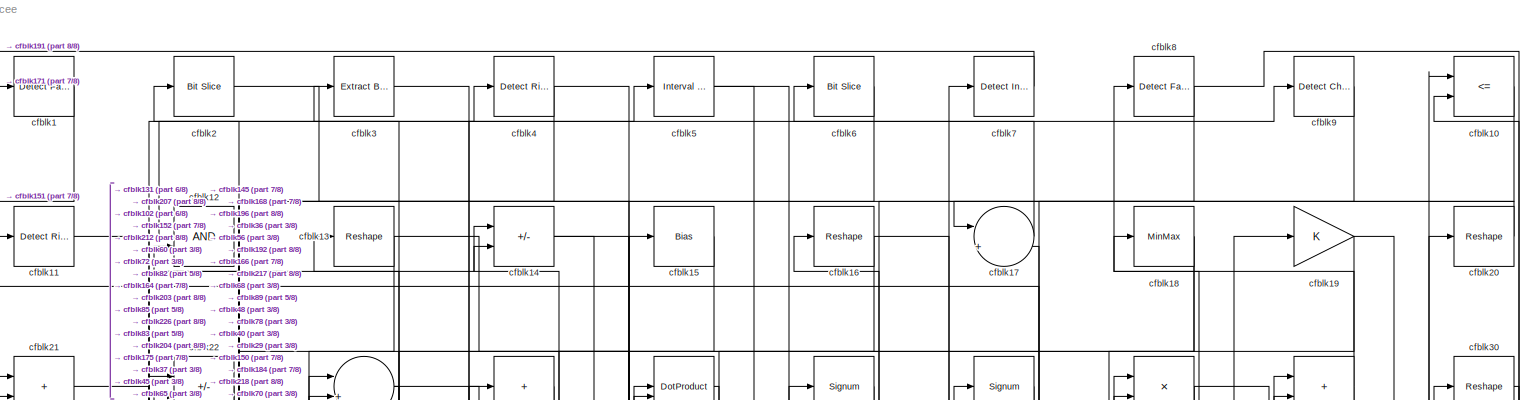
[diagram: root canvas - part 1/8, full width, top band]
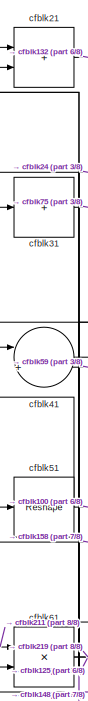
[diagram: root canvas - part 2/8, top left region]
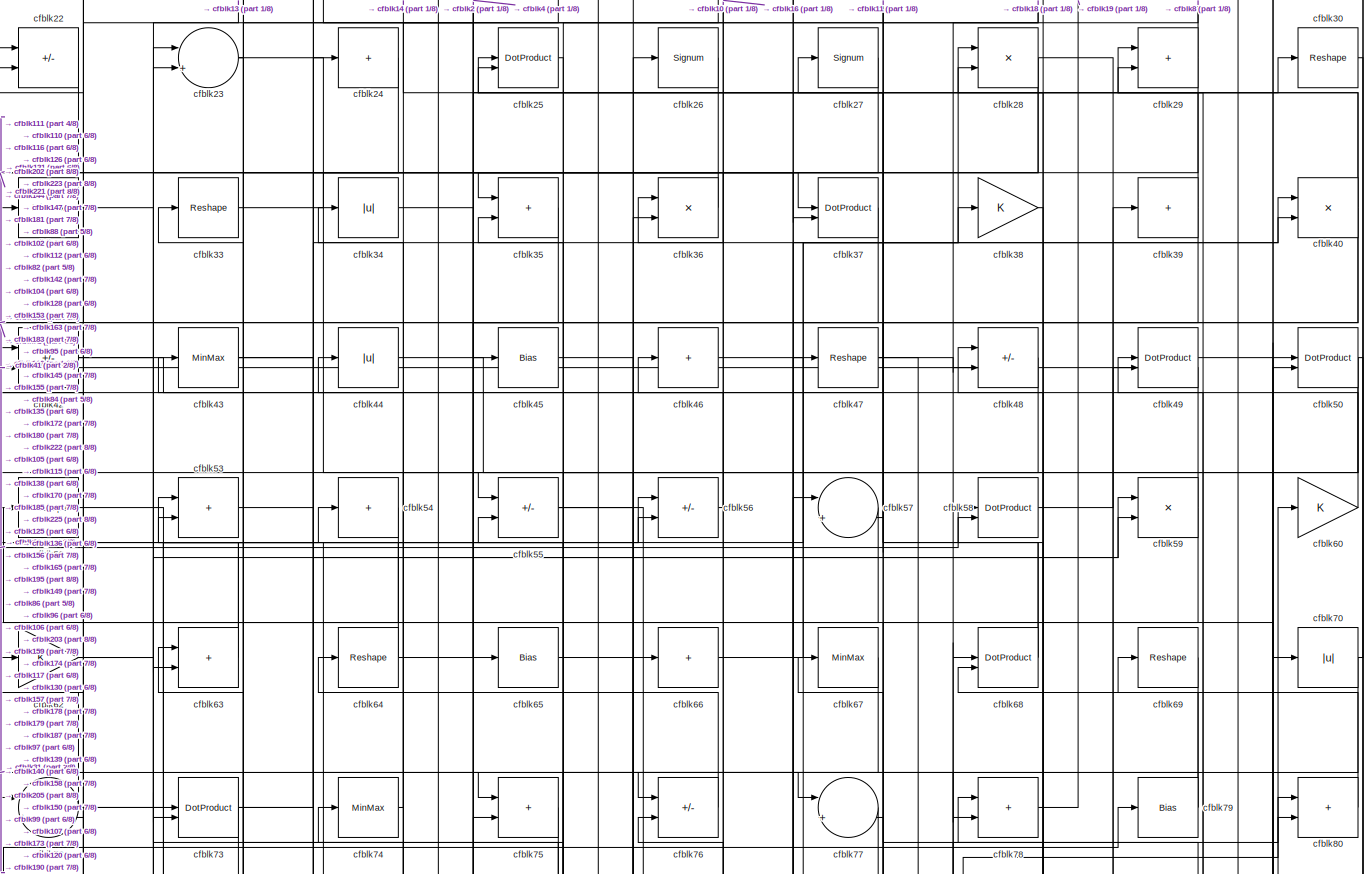
[diagram: root canvas - part 3/8, full width, top band]
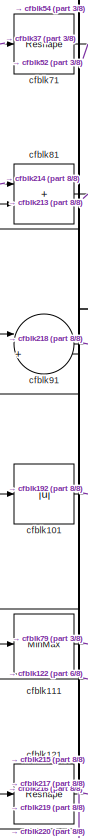
[diagram: root canvas - part 4/8, middle left region]
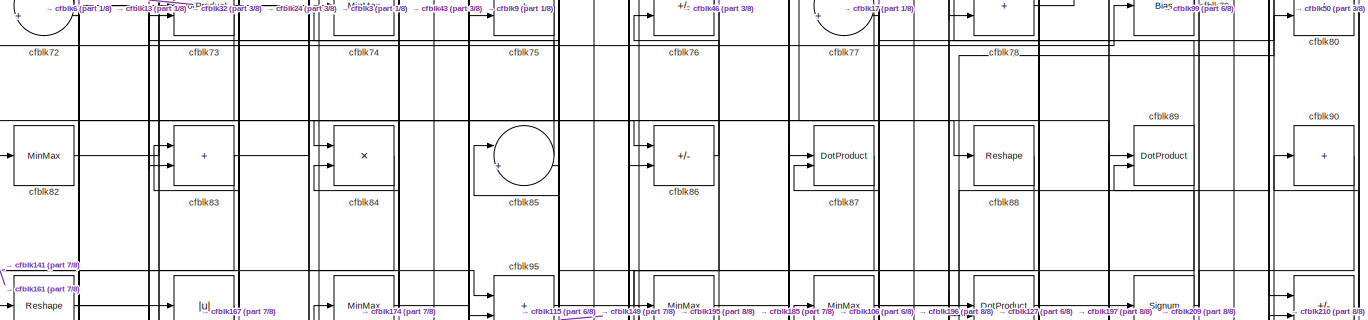
[diagram: root canvas - part 5/8, full width, middle band]
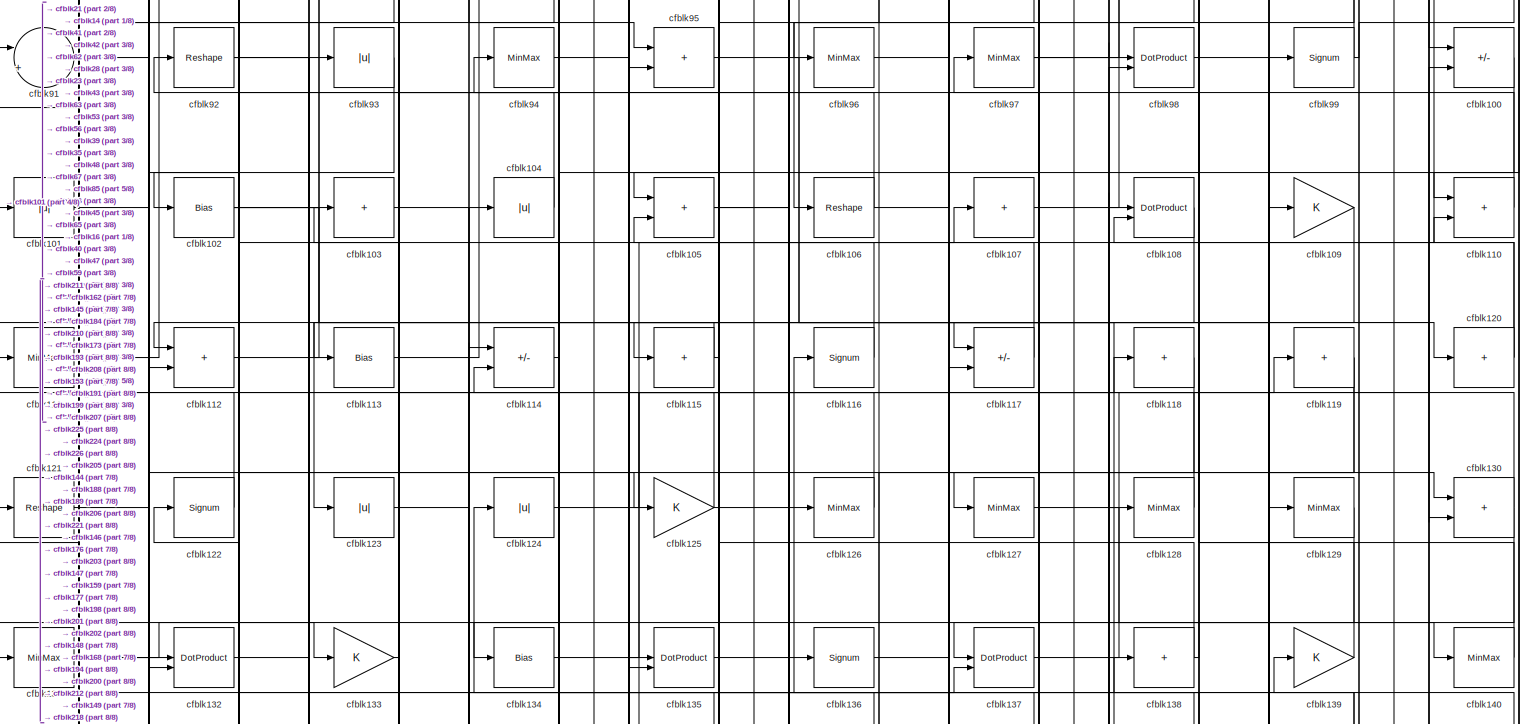
[diagram: root canvas - part 6/8, full width, middle band]
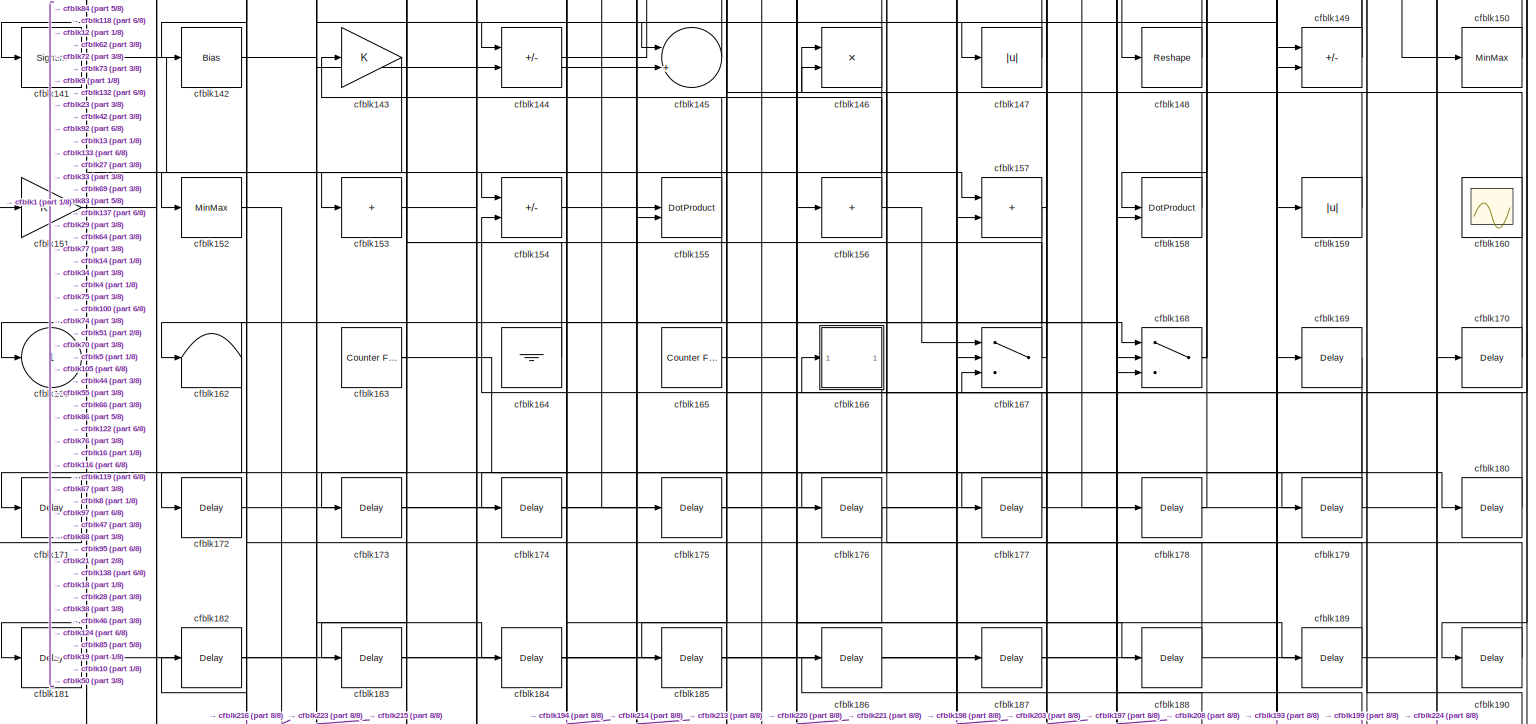
[diagram: root canvas - part 7/8, full width, bottom band]
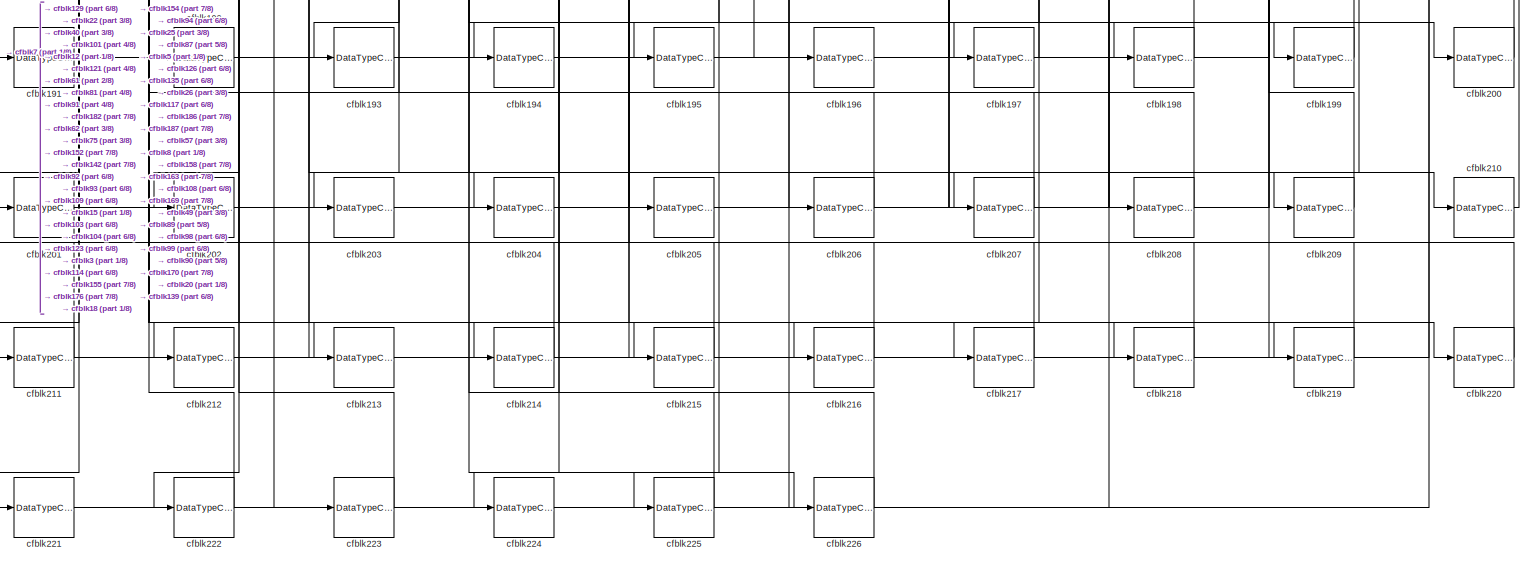
[diagram: root canvas - part 8/8, full width, bottom band]
MODEL slx_c5212704bcee
KIND model
CONFIG AbsTol = auto
CONFIG EnableMultiTasking = off
CONFIG FixedStep = auto
CONFIG MaxStep = auto
CONFIG MinStep = auto
CONFIG RelTol = 1e-3
CONFIG SampleTimeConstraint = Unconstrained
CONFIG SolverName = VariableStepAuto
CONFIG StartTime = 0.0
CONFIG StopTime = 10.0
BLOCK [Reference] cfblk1  REF=hdlsllib/Logic and Bit
Operations/Detect Fall
Negative
  SourceBlock = hdlsllib/Logic and Bit\nOperations/Detect Fall\nNegative
  SourceType = Detect Fall Negative
BLOCK [RelationalOperator] cfblk10
  InputSameDT = off
  Operator = <=
  OutDataTypeStr = boolean
BLOCK [Sum] cfblk100
  IconShape = rectangular
  Inputs = +-
BLOCK [Abs] cfblk101
  SaturateOnIntegerOverflow = off
BLOCK [Bias] cfblk102
  Bias = 0.0
  SaturateOnIntegerOverflow = off
BLOCK [Sum] cfblk103
  IconShape = rectangular
  Inputs = +
BLOCK [Abs] cfblk104
  SaturateOnIntegerOverflow = off
BLOCK [Sum] cfblk105
  IconShape = rectangular
BLOCK [Reshape] cfblk106
BLOCK [Sum] cfblk107
  IconShape = rectangular
  Inputs = +
BLOCK [DotProduct] cfblk108
  OutDataTypeStr = Inherit: Inherit via internal rule
BLOCK [Gain] cfblk109
BLOCK [Reference] cfblk11  REF=hdlsllib/Logic and Bit
Operations/Detect Rise
Nonnegative
  SourceBlock = hdlsllib/Logic and Bit\nOperations/Detect Rise\nNonnegative
  SourceType = Detect Rise Nonnegative
BLOCK [Sum] cfblk110
  IconShape = rectangular
BLOCK [MinMax] cfblk111
BLOCK [Sum] cfblk112
  IconShape = rectangular
BLOCK [Bias] cfblk113
  Bias = 0.0
  SaturateOnIntegerOverflow = off
BLOCK [Sum] cfblk114
  IconShape = rectangular
  Inputs = +-
BLOCK [Sum] cfblk115
  IconShape = rectangular
  Inputs = +
BLOCK [Signum] cfblk116
BLOCK [Sum] cfblk117
  IconShape = rectangular
  Inputs = +-
BLOCK [Sum] cfblk118
  IconShape = rectangular
  Inputs = +
BLOCK [Sum] cfblk119
  IconShape = rectangular
  Inputs = +
BLOCK [Logic] cfblk12
  AllPortsSameDT = off
  OutDataTypeStr = boolean
BLOCK [Sum] cfblk120
  IconShape = rectangular
  Inputs = +
BLOCK [Reshape] cfblk121
BLOCK [Signum] cfblk122
BLOCK [Abs] cfblk123
  SaturateOnIntegerOverflow = off
BLOCK [Abs] cfblk124
  SaturateOnIntegerOverflow = off
BLOCK [Gain] cfblk125
BLOCK [MinMax] cfblk126
BLOCK [MinMax] cfblk127
BLOCK [MinMax] cfblk128
BLOCK [MinMax] cfblk129
BLOCK [Reshape] cfblk13
BLOCK [Sum] cfblk130
  IconShape = rectangular
BLOCK [MinMax] cfblk131
BLOCK [DotProduct] cfblk132
  OutDataTypeStr = Inherit: Inherit via internal rule
BLOCK [Gain] cfblk133
BLOCK [Bias] cfblk134
  Bias = 0.0
  SaturateOnIntegerOverflow = off
BLOCK [DotProduct] cfblk135
  OutDataTypeStr = Inherit: Inherit via internal rule
BLOCK [Signum] cfblk136
BLOCK [DotProduct] cfblk137
  OutDataTypeStr = Inherit: Inherit via internal rule
BLOCK [Sum] cfblk138
  IconShape = rectangular
  Inputs = +
BLOCK [Gain] cfblk139
BLOCK [Sum] cfblk14
  IconShape = rectangular
  Inputs = +-
BLOCK [MinMax] cfblk140
BLOCK [Signum] cfblk141
BLOCK [Bias] cfblk142
  Bias = 0.0
  SaturateOnIntegerOverflow = off
BLOCK [Gain] cfblk143
BLOCK [Sum] cfblk144
  IconShape = rectangular
  Inputs = +-
BLOCK [Sum] cfblk145
  Inputs = |++
BLOCK [Product] cfblk146
  Inputs = */
  RndMeth = Zero
  SaturateOnIntegerOverflow = on
BLOCK [Abs] cfblk147
  SaturateOnIntegerOverflow = off
BLOCK [Reshape] cfblk148
BLOCK [Sum] cfblk149
  IconShape = rectangular
  Inputs = +-
BLOCK [Bias] cfblk15
  Bias = 0.0
  SaturateOnIntegerOverflow = off
BLOCK [MinMax] cfblk150
BLOCK [Gain] cfblk151
BLOCK [MinMax] cfblk152
BLOCK [Sum] cfblk153
  IconShape = rectangular
  Inputs = +
BLOCK [Sum] cfblk154
  IconShape = rectangular
  Inputs = +-
BLOCK [DotProduct] cfblk155
  OutDataTypeStr = Inherit: Inherit via internal rule
BLOCK [Sum] cfblk156
  IconShape = rectangular
  Inputs = +
BLOCK [Sum] cfblk157
  IconShape = rectangular
BLOCK [DotProduct] cfblk158
  OutDataTypeStr = Inherit: Inherit via internal rule
BLOCK [Abs] cfblk159
  SaturateOnIntegerOverflow = off
BLOCK [Reshape] cfblk16
BLOCK [Scope] cfblk160
  Floating = on
  NumInputPorts = 1
  ScopeSpecificationString = Simulink.scopes.TimeScopeBlockCfg('CurrentConfiguration', extmgr.ConfigurationSet(extmgr.Configuration('Core','General UI',true,'FigureColor',[0.156862745098039 0.156862745098039 0.156862745098039]),extmgr.Configuration('Core','Source UI',true),extmgr.Configuration('Sources','WiredSimulink',true,'DataLoggingVariableName','ScopeData1','DataLoggingSaveFormat','StructureWithTime','DataLoggingLimitDat...<+2713ch>
BLOCK [Outport] cfblk161
  VectorParamsAs1DForOutWhenUnconnected = off
BLOCK [Terminator] cfblk162
BLOCK [Reference] cfblk163  REF=hdlsllib/Sources/Counter
Free-Running
  SourceBlock = hdlsllib/Sources/Counter\nFree-Running
  SourceType = Counter Free-Running
BLOCK [Ground] cfblk164
BLOCK [Reference] cfblk165  REF=hdlsllib/Sources/Counter
Free-Running
  SourceBlock = hdlsllib/Sources/Counter\nFree-Running
  SourceType = Counter Free-Running
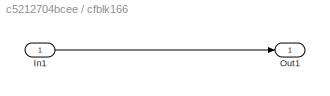
BLOCK [SubSystem] cfblk166
  LibrarySourceBlock = hdlsllib/Ports &\nSubsystems/Subsystem
BLOCK [Inport] cfblk166/In1
BLOCK [Outport] cfblk166/Out1
BLOCK [Switch] cfblk167
  InputSameDT = off
  SaturateOnIntegerOverflow = off
BLOCK [Switch] cfblk168
  InputSameDT = off
  SaturateOnIntegerOverflow = off
BLOCK [Delay] cfblk169
  InputPortMap = u0
  SampleTime = 1
BLOCK [Sum] cfblk17
  Inputs = |++
BLOCK [Delay] cfblk170
  InputPortMap = u0
  SampleTime = 1
BLOCK [Delay] cfblk171
  InputPortMap = u0
  SampleTime = 1
BLOCK [Delay] cfblk172
  InputPortMap = u0
  SampleTime = 1
BLOCK [Delay] cfblk173
  InputPortMap = u0
  SampleTime = 1
BLOCK [Delay] cfblk174
  InputPortMap = u0
  SampleTime = 1
BLOCK [Delay] cfblk175
  InputPortMap = u0
  SampleTime = 1
BLOCK [Delay] cfblk176
  InputPortMap = u0
  SampleTime = 1
BLOCK [Delay] cfblk177
  InputPortMap = u0
  SampleTime = 1
BLOCK [Delay] cfblk178
  InputPortMap = u0
  SampleTime = 1
BLOCK [Delay] cfblk179
  InputPortMap = u0
  SampleTime = 1
BLOCK [MinMax] cfblk18
BLOCK [Delay] cfblk180
  InputPortMap = u0
  SampleTime = 1
BLOCK [Delay] cfblk181
  InputPortMap = u0
  SampleTime = 1
BLOCK [Delay] cfblk182
  InputPortMap = u0
  SampleTime = 1
BLOCK [Delay] cfblk183
  InputPortMap = u0
  SampleTime = 1
BLOCK [Delay] cfblk184
  InputPortMap = u0
  SampleTime = 1
BLOCK [Delay] cfblk185
  InputPortMap = u0
  SampleTime = 1
BLOCK [Delay] cfblk186
  InputPortMap = u0
  SampleTime = 1
BLOCK [Delay] cfblk187
  InputPortMap = u0
  SampleTime = 1
BLOCK [Delay] cfblk188
  InputPortMap = u0
  SampleTime = 1
BLOCK [Delay] cfblk189
  InputPortMap = u0
  SampleTime = 1
BLOCK [Gain] cfblk19
BLOCK [Delay] cfblk190
  InputPortMap = u0
  SampleTime = 1
BLOCK [DataTypeConversion] cfblk191
  OutDataTypeStr = uint8
  RndMeth = Floor
  SaturateOnIntegerOverflow = off
BLOCK [DataTypeConversion] cfblk192
  OutDataTypeStr = uint8
  RndMeth = Floor
  SaturateOnIntegerOverflow = off
BLOCK [DataTypeConversion] cfblk193
  OutDataTypeStr = uint8
  RndMeth = Floor
  SaturateOnIntegerOverflow = off
BLOCK [DataTypeConversion] cfblk194
  OutDataTypeStr = uint8
  RndMeth = Floor
  SaturateOnIntegerOverflow = off
BLOCK [DataTypeConversion] cfblk195
  OutDataTypeStr = uint8
  RndMeth = Floor
  SaturateOnIntegerOverflow = off
BLOCK [DataTypeConversion] cfblk196
  OutDataTypeStr = uint8
  RndMeth = Floor
  SaturateOnIntegerOverflow = off
BLOCK [DataTypeConversion] cfblk197
  OutDataTypeStr = uint8
  RndMeth = Floor
  SaturateOnIntegerOverflow = off
BLOCK [DataTypeConversion] cfblk198
  OutDataTypeStr = uint8
  RndMeth = Floor
  SaturateOnIntegerOverflow = off
BLOCK [DataTypeConversion] cfblk199
  OutDataTypeStr = uint8
  RndMeth = Floor
  SaturateOnIntegerOverflow = off
BLOCK [Reference] cfblk2  REF=hdlsllib/Logic and Bit
Operations/Bit Slice
  SourceBlock = hdlsllib/Logic and Bit\nOperations/Bit Slice
  SourceType = Bit Slice
BLOCK [Reshape] cfblk20
BLOCK [DataTypeConversion] cfblk200
  OutDataTypeStr = uint8
  RndMeth = Floor
  SaturateOnIntegerOverflow = off
BLOCK [DataTypeConversion] cfblk201
  OutDataTypeStr = uint8
  RndMeth = Floor
  SaturateOnIntegerOverflow = off
BLOCK [DataTypeConversion] cfblk202
  OutDataTypeStr = uint8
  RndMeth = Floor
  SaturateOnIntegerOverflow = off
BLOCK [DataTypeConversion] cfblk203
  RndMeth = Floor
  SaturateOnIntegerOverflow = off
BLOCK [DataTypeConversion] cfblk204
  OutDataTypeStr = uint8
  RndMeth = Floor
  SaturateOnIntegerOverflow = off
BLOCK [DataTypeConversion] cfblk205
  OutDataTypeStr = uint8
  RndMeth = Floor
  SaturateOnIntegerOverflow = off
BLOCK [DataTypeConversion] cfblk206
  OutDataTypeStr = uint8
  RndMeth = Floor
  SaturateOnIntegerOverflow = off
BLOCK [DataTypeConversion] cfblk207
  RndMeth = Floor
  SaturateOnIntegerOverflow = off
BLOCK [DataTypeConversion] cfblk208
  OutDataTypeStr = uint8
  RndMeth = Floor
  SaturateOnIntegerOverflow = off
BLOCK [DataTypeConversion] cfblk209
  OutDataTypeStr = uint8
  RndMeth = Floor
  SaturateOnIntegerOverflow = off
BLOCK [Sum] cfblk21
  IconShape = rectangular
BLOCK [DataTypeConversion] cfblk210
  OutDataTypeStr = uint8
  RndMeth = Floor
  SaturateOnIntegerOverflow = off
BLOCK [DataTypeConversion] cfblk211
  RndMeth = Floor
  SaturateOnIntegerOverflow = off
BLOCK [DataTypeConversion] cfblk212
  OutDataTypeStr = uint8
  RndMeth = Floor
  SaturateOnIntegerOverflow = off
BLOCK [DataTypeConversion] cfblk213
  OutDataTypeStr = uint8
  RndMeth = Floor
  SaturateOnIntegerOverflow = off
BLOCK [DataTypeConversion] cfblk214
  OutDataTypeStr = uint8
  RndMeth = Floor
  SaturateOnIntegerOverflow = off
BLOCK [DataTypeConversion] cfblk215
  OutDataTypeStr = uint8
  RndMeth = Floor
  SaturateOnIntegerOverflow = off
BLOCK [DataTypeConversion] cfblk216
  OutDataTypeStr = uint8
  RndMeth = Floor
  SaturateOnIntegerOverflow = off
BLOCK [DataTypeConversion] cfblk217
  OutDataTypeStr = uint8
  RndMeth = Floor
  SaturateOnIntegerOverflow = off
BLOCK [DataTypeConversion] cfblk218
  RndMeth = Floor
  SaturateOnIntegerOverflow = off
BLOCK [DataTypeConversion] cfblk219
  OutDataTypeStr = uint8
  RndMeth = Floor
  SaturateOnIntegerOverflow = off
BLOCK [Sum] cfblk22
  IconShape = rectangular
  Inputs = +-
BLOCK [DataTypeConversion] cfblk220
  OutDataTypeStr = uint8
  RndMeth = Floor
  SaturateOnIntegerOverflow = off
BLOCK [DataTypeConversion] cfblk221
  RndMeth = Floor
  SaturateOnIntegerOverflow = off
BLOCK [DataTypeConversion] cfblk222
  OutDataTypeStr = uint8
  RndMeth = Floor
  SaturateOnIntegerOverflow = off
BLOCK [DataTypeConversion] cfblk223
  OutDataTypeStr = uint8
  RndMeth = Floor
  SaturateOnIntegerOverflow = off
BLOCK [DataTypeConversion] cfblk224
  OutDataTypeStr = uint8
  RndMeth = Floor
  SaturateOnIntegerOverflow = off
BLOCK [DataTypeConversion] cfblk225
  OutDataTypeStr = uint8
  RndMeth = Floor
  SaturateOnIntegerOverflow = off
BLOCK [DataTypeConversion] cfblk226
  OutDataTypeStr = uint8
  RndMeth = Floor
  SaturateOnIntegerOverflow = off
BLOCK [Sum] cfblk23
  Inputs = |++
BLOCK [Sum] cfblk24
  IconShape = rectangular
  Inputs = +
BLOCK [DotProduct] cfblk25
  OutDataTypeStr = Inherit: Inherit via internal rule
BLOCK [Signum] cfblk26
BLOCK [Signum] cfblk27
BLOCK [Product] cfblk28
  Inputs = */
  RndMeth = Zero
  SaturateOnIntegerOverflow = on
BLOCK [Sum] cfblk29
  IconShape = rectangular
BLOCK [Reference] cfblk3  REF=simulink/Logic and Bit
Operations/Extract Bits
  LibrarySourceBlock = hdlsllib/Logic and Bit\nOperations/Extract Bits
  SourceBlock = simulink/Logic and Bit\nOperations/Extract Bits
  SourceType = Extract Bits
BLOCK [Reshape] cfblk30
BLOCK [Sum] cfblk31
  IconShape = rectangular
  Inputs = +
BLOCK [MinMax] cfblk32
BLOCK [Reshape] cfblk33
BLOCK [Abs] cfblk34
  SaturateOnIntegerOverflow = off
BLOCK [Sum] cfblk35
  IconShape = rectangular
BLOCK [Product] cfblk36
  Inputs = */
  RndMeth = Zero
  SaturateOnIntegerOverflow = on
BLOCK [DotProduct] cfblk37
  OutDataTypeStr = Inherit: Inherit via internal rule
BLOCK [Gain] cfblk38
BLOCK [Sum] cfblk39
  IconShape = rectangular
  Inputs = +
BLOCK [Reference] cfblk4  REF=hdlsllib/Logic and Bit
Operations/Detect Rise
Positive
  SourceBlock = hdlsllib/Logic and Bit\nOperations/Detect Rise\nPositive
  SourceType = Detect Rise Positive
BLOCK [Product] cfblk40
  Inputs = */
  RndMeth = Zero
  SaturateOnIntegerOverflow = on
BLOCK [Sum] cfblk41
  Inputs = |++
BLOCK [Sum] cfblk42
  IconShape = rectangular
  Inputs = +-
BLOCK [MinMax] cfblk43
BLOCK [Abs] cfblk44
  SaturateOnIntegerOverflow = off
BLOCK [Bias] cfblk45
  Bias = 0.0
  SaturateOnIntegerOverflow = off
BLOCK [Sum] cfblk46
  IconShape = rectangular
  Inputs = +
BLOCK [Reshape] cfblk47
BLOCK [Sum] cfblk48
  IconShape = rectangular
  Inputs = +-
BLOCK [DotProduct] cfblk49
  OutDataTypeStr = Inherit: Inherit via internal rule
BLOCK [Reference] cfblk5  REF=hdlsllib/Logic and Bit
Operations/Interval Test
  SourceBlock = hdlsllib/Logic and Bit\nOperations/Interval Test
  SourceType = Interval Test
BLOCK [DotProduct] cfblk50
  OutDataTypeStr = Inherit: Inherit via internal rule
BLOCK [Reshape] cfblk51
BLOCK [Reshape] cfblk52
BLOCK [Sum] cfblk53
  IconShape = rectangular
BLOCK [Sum] cfblk54
  IconShape = rectangular
  Inputs = +
BLOCK [Sum] cfblk55
  IconShape = rectangular
  Inputs = +-
BLOCK [Sum] cfblk56
  IconShape = rectangular
  Inputs = +-
BLOCK [Sum] cfblk57
  Inputs = |++
BLOCK [DotProduct] cfblk58
  OutDataTypeStr = Inherit: Inherit via internal rule
BLOCK [Product] cfblk59
  Inputs = */
  RndMeth = Zero
  SaturateOnIntegerOverflow = on
BLOCK [Reference] cfblk6  REF=hdlsllib/Logic and Bit
Operations/Bit Slice
  SourceBlock = hdlsllib/Logic and Bit\nOperations/Bit Slice
  SourceType = Bit Slice
BLOCK [Gain] cfblk60
BLOCK [Product] cfblk61
  Inputs = */
  RndMeth = Zero
  SaturateOnIntegerOverflow = on
BLOCK [Gain] cfblk62
BLOCK [Sum] cfblk63
  IconShape = rectangular
BLOCK [Reshape] cfblk64
BLOCK [Bias] cfblk65
  Bias = 0.0
  SaturateOnIntegerOverflow = off
BLOCK [Sum] cfblk66
  IconShape = rectangular
  Inputs = +
BLOCK [MinMax] cfblk67
BLOCK [DotProduct] cfblk68
  OutDataTypeStr = Inherit: Inherit via internal rule
BLOCK [Reshape] cfblk69
BLOCK [Reference] cfblk7  REF=simulink/Logic and Bit
Operations/Detect
Increase
  LibrarySourceBlock = hdlsllib/Logic and Bit\nOperations/Detect\nIncrease
  SourceBlock = simulink/Logic and Bit\nOperations/Detect\nIncrease
  SourceType = Detect Increase
BLOCK [Abs] cfblk70
  SaturateOnIntegerOverflow = off
BLOCK [Reshape] cfblk71
BLOCK [Sum] cfblk72
  Inputs = |++
BLOCK [DotProduct] cfblk73
  OutDataTypeStr = Inherit: Inherit via internal rule
BLOCK [MinMax] cfblk74
BLOCK [Sum] cfblk75
  IconShape = rectangular
BLOCK [Sum] cfblk76
  IconShape = rectangular
  Inputs = +-
BLOCK [Sum] cfblk77
  Inputs = |++
BLOCK [Sum] cfblk78
  IconShape = rectangular
BLOCK [Bias] cfblk79
  Bias = 0.0
  SaturateOnIntegerOverflow = off
BLOCK [Reference] cfblk8  REF=hdlsllib/Logic and Bit
Operations/Detect Fall
Nonpositive
  SourceBlock = hdlsllib/Logic and Bit\nOperations/Detect Fall\nNonpositive
  SourceType = Detect Fall Nonpositive
BLOCK [Sum] cfblk80
  IconShape = rectangular
BLOCK [Sum] cfblk81
  IconShape = rectangular
BLOCK [MinMax] cfblk82
BLOCK [Sum] cfblk83
  IconShape = rectangular
BLOCK [Product] cfblk84
  Inputs = */
  RndMeth = Zero
  SaturateOnIntegerOverflow = on
BLOCK [Sum] cfblk85
  Inputs = |++
BLOCK [Sum] cfblk86
  IconShape = rectangular
  Inputs = +-
BLOCK [DotProduct] cfblk87
  OutDataTypeStr = Inherit: Inherit via internal rule
BLOCK [Reshape] cfblk88
BLOCK [DotProduct] cfblk89
  OutDataTypeStr = Inherit: Inherit via internal rule
BLOCK [Reference] cfblk9  REF=simulink/Logic and Bit
Operations/Detect
Change
  LibrarySourceBlock = hdlsllib/Logic and Bit\nOperations/Detect\nChange
  SourceBlock = simulink/Logic and Bit\nOperations/Detect\nChange
  SourceType = Detect Change
BLOCK [Sum] cfblk90
  IconShape = rectangular
  Inputs = +
BLOCK [Sum] cfblk91
  Inputs = |++
BLOCK [Reshape] cfblk92
BLOCK [Abs] cfblk93
  SaturateOnIntegerOverflow = off
BLOCK [MinMax] cfblk94
BLOCK [Sum] cfblk95
  IconShape = rectangular
BLOCK [MinMax] cfblk96
BLOCK [MinMax] cfblk97
BLOCK [DotProduct] cfblk98
  OutDataTypeStr = Inherit: Inherit via internal rule
BLOCK [Signum] cfblk99
LINE cfblk100:1 -> cfblk134:1
LINE cfblk101:1 -> cfblk192:1
NET cfblk102:1 -> cfblk128:1, cfblk130:2, cfblk28:1
LINE cfblk103:1 -> cfblk207:1
LINE cfblk104:1 -> cfblk63:1
NET cfblk105:1 -> cfblk188:1, cfblk189:1
NET cfblk106:1 -> cfblk40:2, cfblk92:1
LINE cfblk107:1 -> cfblk50:2
LINE cfblk108:1 -> cfblk123:1
LINE cfblk109:1 -> cfblk193:1
LINE cfblk10:1 -> cfblk36:1
LINE cfblk110:1 -> cfblk42:1
LINE cfblk111:1 -> cfblk79:1
LINE cfblk112:1 -> cfblk56:2
LINE cfblk113:1 -> cfblk56:1
LINE cfblk114:1 -> cfblk224:1
NET cfblk115:1 -> cfblk112:1, cfblk85:2
LINE cfblk116:1 -> cfblk42:2
LINE cfblk117:1 -> cfblk105:2
LINE cfblk118:1 -> cfblk162:1
NET cfblk119:1 -> cfblk176:1, cfblk177:1
LINE cfblk11:1 -> cfblk4:1
NET cfblk120:1 -> cfblk58:2, cfblk80:1
LINE cfblk121:1 -> cfblk216:1
LINE cfblk122:1 -> cfblk101:1
LINE cfblk123:1 -> cfblk199:1
LINE cfblk124:1 -> cfblk107:1
NET cfblk125:1 -> cfblk21:2, cfblk36:2
LINE cfblk126:1 -> cfblk62:1
LINE cfblk127:1 -> cfblk140:1
LINE cfblk128:1 -> cfblk43:1
LINE cfblk129:1 -> cfblk211:1
LINE cfblk12:1 -> cfblk212:1
NET cfblk130:1 -> cfblk137:1, cfblk77:2
NET cfblk131:1 -> cfblk133:1, cfblk14:1
LINE cfblk132:1 -> cfblk184:1
LINE cfblk133:1 -> cfblk173:1
LINE cfblk134:1 -> cfblk118:1
LINE cfblk135:1 -> cfblk206:1
LINE cfblk136:1 -> cfblk110:2
LINE cfblk137:1 -> cfblk119:1
NET cfblk138:1 -> cfblk108:2, cfblk35:2
LINE cfblk139:1 -> cfblk78:1
NET cfblk13:1 -> cfblk45:1, cfblk83:2
LINE cfblk140:1 -> cfblk68:2
LINE cfblk141:1 -> cfblk157:1
LINE cfblk142:1 -> cfblk215:1
LINE cfblk143:1 -> cfblk171:1
LINE cfblk144:1 -> cfblk100:2
LINE cfblk145:1 -> cfblk74:1
NET cfblk146:1 -> cfblk122:1, cfblk154:1
LINE cfblk147:1 -> cfblk116:1
LINE cfblk148:1 -> cfblk21:1
NET cfblk149:1 -> cfblk124:1, cfblk85:1
NET cfblk14:1 -> cfblk175:1, cfblk37:2
LINE cfblk150:1 -> cfblk29:2
LINE cfblk151:1 -> cfblk5:1
NET cfblk152:1 -> cfblk12:2, cfblk223:1
LINE cfblk153:1 -> cfblk137:2
LINE cfblk154:1 -> cfblk220:1
NET cfblk155:1 -> cfblk194:1, cfblk64:1
NET cfblk156:1 -> cfblk143:1, cfblk167:1
NET cfblk157:1 -> cfblk172:1, cfblk67:1
LINE cfblk158:1 -> cfblk51:1
LINE cfblk159:1 -> cfblk97:1
LINE cfblk15:1 -> cfblk203:1
NET cfblk163:1 -> cfblk208:1, cfblk33:1
LINE cfblk164:1 -> cfblk13:1
LINE cfblk165:1 -> cfblk66:1
LINE cfblk166/In1:1 -> cfblk166/Out1:1
LINE cfblk166:1 -> cfblk181:1
NET cfblk167:1 -> cfblk146:1, cfblk83:1
NET cfblk168:1 -> cfblk138:1, cfblk18:1
LINE cfblk169:1 -> cfblk197:1
NET cfblk16:1 -> cfblk102:1, cfblk168:2
LINE cfblk170:1 -> cfblk73:1
LINE cfblk171:1 -> cfblk1:1
LINE cfblk172:1 -> cfblk75:2
LINE cfblk173:1 -> cfblk50:1
LINE cfblk174:1 -> cfblk84:2
LINE cfblk175:1 -> cfblk167:2
LINE cfblk176:1 -> cfblk214:1
LINE cfblk177:1 -> cfblk154:2
LINE cfblk178:1 -> cfblk28:2
LINE cfblk179:1 -> cfblk76:2
LINE cfblk17:1 -> cfblk6:1
LINE cfblk180:1 -> cfblk55:2
LINE cfblk181:1 -> cfblk23:1
LINE cfblk182:1 -> cfblk155:1
LINE cfblk183:1 -> cfblk157:2
LINE cfblk184:1 -> cfblk10:1
LINE cfblk185:1 -> cfblk86:2
LINE cfblk186:1 -> cfblk198:1
LINE cfblk187:1 -> cfblk68:1
LINE cfblk188:1 -> cfblk146:2
LINE cfblk189:1 -> cfblk167:3
NET cfblk18:1 -> cfblk204:1, cfblk48:2
LINE cfblk190:1 -> cfblk72:2
LINE cfblk191:1 -> cfblk104:1
LINE cfblk192:1 -> cfblk7:1
LINE cfblk193:1 -> cfblk169:1
LINE cfblk194:1 -> cfblk109:1
LINE cfblk195:1 -> cfblk26:1
LINE cfblk196:1 -> cfblk87:1
LINE cfblk197:1 -> cfblk87:2
LINE cfblk198:1 -> cfblk108:1
LINE cfblk199:1 -> cfblk186:1
NET cfblk19:1 -> cfblk145:1, cfblk150:1
LINE cfblk1:1 -> cfblk151:1
LINE cfblk200:1 -> cfblk139:1
LINE cfblk201:1 -> cfblk98:1
LINE cfblk202:1 -> cfblk98:2
NET cfblk203:1 -> cfblk117:2, cfblk187:1, cfblk57:1
LINE cfblk204:1 -> cfblk15:1
LINE cfblk205:1 -> cfblk49:2
LINE cfblk206:1 -> cfblk94:1
NET cfblk207:1 -> cfblk12:1, cfblk99:1
LINE cfblk208:1 -> cfblk103:1
LINE cfblk209:1 -> cfblk89:1
LINE cfblk20:1 -> cfblk17:1
LINE cfblk210:1 -> cfblk90:1
NET cfblk211:1 -> cfblk61:1, cfblk93:1
LINE cfblk212:1 -> cfblk129:1
LINE cfblk213:1 -> cfblk155:2
LINE cfblk214:1 -> cfblk81:1
LINE cfblk215:1 -> cfblk81:2
LINE cfblk216:1 -> cfblk182:1
LINE cfblk217:1 -> cfblk121:1
NET cfblk218:1 -> cfblk135:1, cfblk20:1
LINE cfblk219:1 -> cfblk91:1
LINE cfblk21:1 -> cfblk132:1
LINE cfblk220:1 -> cfblk91:2
NET cfblk221:1 -> cfblk126:1, cfblk158:2
LINE cfblk222:1 -> cfblk22:1
LINE cfblk223:1 -> cfblk22:2
LINE cfblk224:1 -> cfblk170:1
LINE cfblk225:1 -> cfblk114:1
LINE cfblk226:1 -> cfblk114:2
LINE cfblk22:1 -> cfblk221:1
NET cfblk23:1 -> cfblk113:1, cfblk55:1
LINE cfblk24:1 -> cfblk31:1
LINE cfblk25:1 -> cfblk225:1
LINE cfblk26:1 -> cfblk73:2
LINE cfblk27:1 -> cfblk153:1
NET cfblk28:1 -> cfblk130:1, cfblk131:1, cfblk96:1
NET cfblk29:1 -> cfblk144:2, cfblk8:1
LINE cfblk2:1 -> cfblk65:1
LINE cfblk30:1 -> cfblk110:1
LINE cfblk31:1 -> cfblk75:1
LINE cfblk32:1 -> cfblk88:1
LINE cfblk33:1 -> cfblk37:1
LINE cfblk34:1 -> cfblk180:1
LINE cfblk35:1 -> cfblk95:2
LINE cfblk36:1 -> cfblk35:1
LINE cfblk37:1 -> cfblk71:1
LINE cfblk38:1 -> cfblk158:1
NET cfblk39:1 -> cfblk135:2, cfblk25:2
LINE cfblk3:1 -> cfblk226:1
NET cfblk40:1 -> cfblk14:2, cfblk201:1, cfblk29:1, cfblk57:2
LINE cfblk41:1 -> cfblk125:1
NET cfblk42:1 -> cfblk144:1, cfblk27:1
NET cfblk43:1 -> cfblk78:2, cfblk86:1
LINE cfblk44:1 -> cfblk156:1
LINE cfblk45:1 -> cfblk136:1
LINE cfblk46:1 -> cfblk159:1
NET cfblk47:1 -> cfblk178:1, cfblk179:1
LINE cfblk48:1 -> cfblk105:1
LINE cfblk49:1 -> cfblk70:1
NET cfblk4:1 -> cfblk168:1, cfblk72:1
NET cfblk50:1 -> cfblk112:2, cfblk190:1, cfblk84:1
NET cfblk51:1 -> cfblk100:1, cfblk41:1
LINE cfblk52:1 -> cfblk77:1
LINE cfblk53:1 -> cfblk95:1
LINE cfblk54:1 -> cfblk111:1
NET cfblk55:1 -> cfblk149:1, cfblk149:2
LINE cfblk56:1 -> cfblk16:1
LINE cfblk57:1 -> cfblk63:2
LINE cfblk58:1 -> cfblk39:1
NET cfblk59:1 -> cfblk117:1, cfblk41:2
NET cfblk5:1 -> cfblk168:3, cfblk196:1
LINE cfblk60:1 -> cfblk2:1
NET cfblk61:1 -> cfblk219:1, cfblk58:1
NET cfblk62:1 -> cfblk147:1, cfblk202:1, cfblk23:2
NET cfblk63:1 -> cfblk53:1, cfblk53:2
NET cfblk64:1 -> cfblk30:1, cfblk32:1
LINE cfblk65:1 -> cfblk120:1
LINE cfblk66:1 -> cfblk38:1
LINE cfblk67:1 -> cfblk115:1
NET cfblk68:1 -> cfblk11:1, cfblk25:1
LINE cfblk69:1 -> cfblk183:1
LINE cfblk6:1 -> cfblk82:1
NET cfblk70:1 -> cfblk10:2, cfblk185:1
LINE cfblk71:1 -> cfblk52:1
NET cfblk72:1 -> cfblk54:1, cfblk59:2, cfblk61:2
NET cfblk73:1 -> cfblk142:1, cfblk40:1, cfblk59:1
LINE cfblk74:1 -> cfblk34:1
LINE cfblk75:1 -> cfblk222:1
LINE cfblk76:1 -> cfblk44:1
LINE cfblk77:1 -> cfblk174:1
LINE cfblk78:1 -> cfblk19:1
NET cfblk79:1 -> cfblk48:1, cfblk76:1
LINE cfblk7:1 -> cfblk191:1
LINE cfblk80:1 -> cfblk69:1
LINE cfblk81:1 -> cfblk213:1
LINE cfblk82:1 -> cfblk24:1
NET cfblk83:1 -> cfblk161:1, cfblk9:1
LINE cfblk84:1 -> cfblk141:1
LINE cfblk85:1 -> cfblk3:1
LINE cfblk86:1 -> cfblk46:1
LINE cfblk87:1 -> cfblk195:1
LINE cfblk88:1 -> cfblk106:1
NET cfblk89:1 -> cfblk127:1, cfblk17:2
NET cfblk8:1 -> cfblk166:1, cfblk217:1
LINE cfblk90:1 -> cfblk209:1
LINE cfblk91:1 -> cfblk218:1
NET cfblk92:1 -> cfblk145:2, cfblk210:1
LINE cfblk93:1 -> cfblk132:2
LINE cfblk94:1 -> cfblk205:1
LINE cfblk95:1 -> cfblk148:1
LINE cfblk96:1 -> cfblk47:1
NET cfblk97:1 -> cfblk60:1, cfblk80:2
LINE cfblk98:1 -> cfblk200:1
NET cfblk99:1 -> cfblk49:1, cfblk89:2
LINE cfblk9:1 -> cfblk152:1
note: NET lines group one-source signal fan-out (src -> all destinations, sorted); 1:1 wires keep LINE
